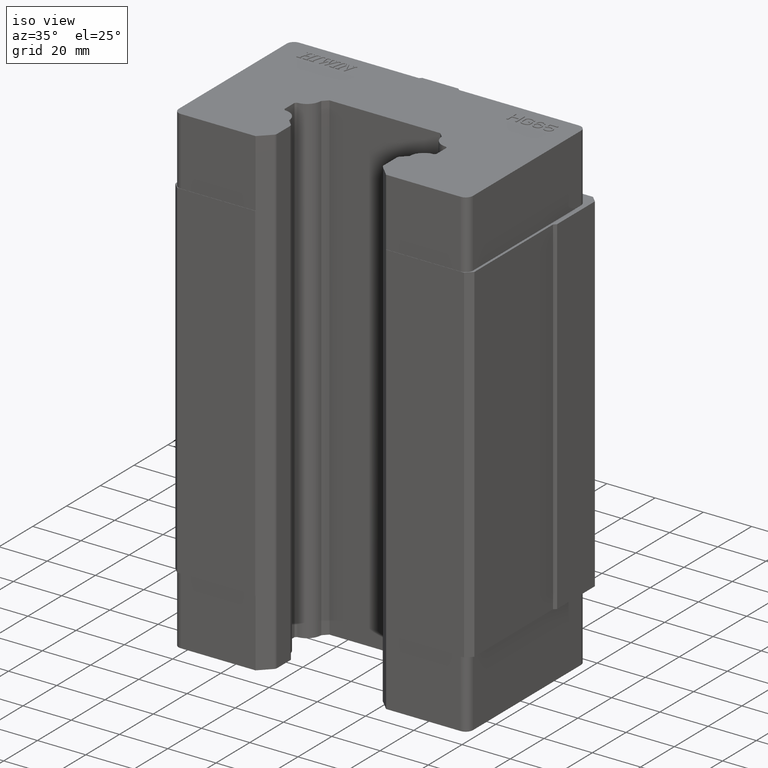
[diagram: clean part render]
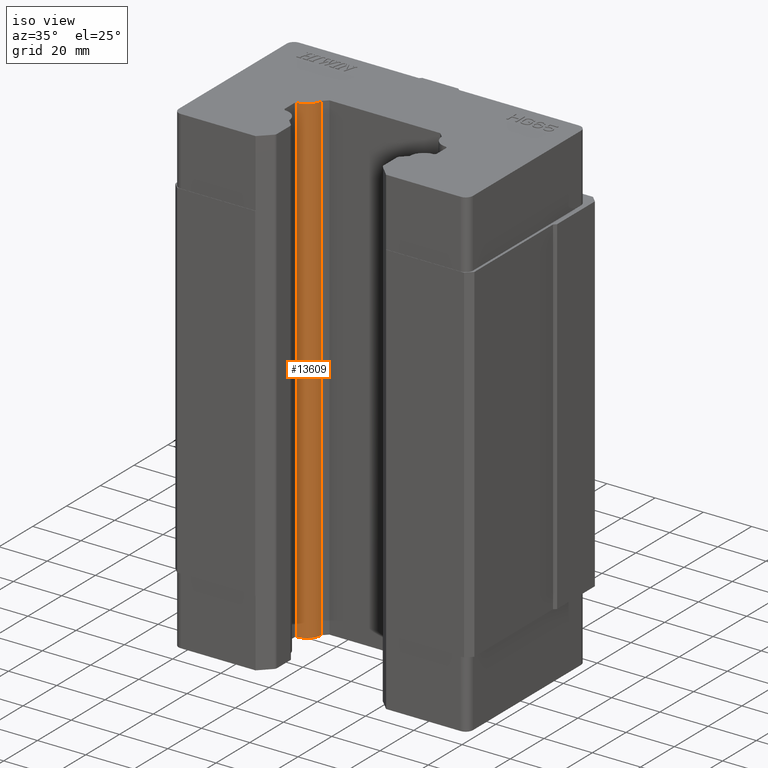
[diagram: same view with one face highlighted and labeled with its STEP entity id]
A machine part, iso view. The second image highlights one B-rep face of the part: STEP entity #13609.
In plain terms, the highlighted cylindrical surface (edge-blend (fillet) strip) has radius 6 mm, axis along (0, 0, 1).
Its self-contained STEP definition (entity closure, byte-faithful):
#1 = ORIENTED_EDGE ( 'NONE', *, *, #602, .T. ) ;
#3 = ORIENTED_EDGE ( 'NONE', *, *, #4, .F. ) ;
#4 = EDGE_CURVE ( 'NONE', #998, #51, #3870, .T. ) ;
#51 = VERTEX_POINT ( 'NONE', #3928 ) ;
#56 = ORIENTED_EDGE ( 'NONE', *, *, #57, .F. ) ;
#57 = EDGE_CURVE ( 'NONE', #51, #58, #3927, .T. ) ;
#58 = VERTEX_POINT ( 'NONE', #3923 ) ;
#108 = EDGE_CURVE ( 'NONE', #1001, #58, #4050, .T. ) ;
#109 = EDGE_LOOP ( 'NONE', ( #112, #56, #3, #1 ) ) ;
#112 = ORIENTED_EDGE ( 'NONE', *, *, #108, .T. ) ;
#602 = EDGE_CURVE ( 'NONE', #998, #1001, #4910, .T. ) ;
#998 = VERTEX_POINT ( 'NONE', #5530 ) ;
#1001 = VERTEX_POINT ( 'NONE', #5528 ) ;
#3866 = DIRECTION ( 'NONE',  ( 1.000000000000000000, 0.0000000000000000000, 0.0000000000000000000 ) ) ;
#3867 = DIRECTION ( 'NONE',  ( 0.0000000000000000000, 0.0000000000000000000, 1.000000000000000000 ) ) ;
#3868 = CARTESIAN_POINT ( 'NONE',  ( -30.99002214876000500, -1.875990851243000100, 100.0999999999999900 ) ) ;
#3869 = AXIS2_PLACEMENT_3D ( 'NONE', #3868, #3867, #3866 ) ;
#3870 = CIRCLE ( 'NONE', #3869, 5.999999999999998200 ) ;
#3923 = CARTESIAN_POINT ( 'NONE',  ( -24.99112634544163600, -1.991095764033635100, -100.0999999999999900 ) ) ;
#3924 = DIRECTION ( 'NONE',  ( 0.0000000000000000000, 0.0000000000000000000, -1.000000000000000000 ) ) ;
#3925 = VECTOR ( 'NONE', #3924, 1000.000000000000000 ) ;
#3926 = CARTESIAN_POINT ( 'NONE',  ( -24.99112634544000100, -1.991095764031999900, -72.09999999999999400 ) ) ;
#3927 = LINE ( 'NONE', #3926, #3925 ) ;
#3928 = CARTESIAN_POINT ( 'NONE',  ( -24.99112634544163600, -1.991095764033635800, 100.0999999999999900 ) ) ;
#4046 = DIRECTION ( 'NONE',  ( 1.000000000000000000, 0.0000000000000000000, 0.0000000000000000000 ) ) ;
#4047 = DIRECTION ( 'NONE',  ( 0.0000000000000000000, 0.0000000000000000000, 1.000000000000000000 ) ) ;
#4048 = CARTESIAN_POINT ( 'NONE',  ( -30.99002214876000500, -1.875990851243000100, -100.0999999999999900 ) ) ;
#4049 = AXIS2_PLACEMENT_3D ( 'NONE', #4048, #4047, #4046 ) ;
#4050 = CIRCLE ( 'NONE', #4049, 5.999999999999998200 ) ;
#4907 = DIRECTION ( 'NONE',  ( 0.0000000000000000000, 0.0000000000000000000, -1.000000000000000000 ) ) ;
#4908 = VECTOR ( 'NONE', #4907, 1000.000000000000000 ) ;
#4909 = CARTESIAN_POINT ( 'NONE',  ( -30.87491723597000300, -7.874886654559775300, -72.09999999999999400 ) ) ;
#4910 = LINE ( 'NONE', #4909, #4908 ) ;
#5528 = CARTESIAN_POINT ( 'NONE',  ( -30.87491723596975000, -7.874886654559770000, -100.0999999999999900 ) ) ;
#5530 = CARTESIAN_POINT ( 'NONE',  ( -30.87491723596975000, -7.874886654559770000, 100.0999999999999900 ) ) ;
#13276 = DIRECTION ( 'NONE',  ( 1.000000000000000000, 0.0000000000000000000, 0.0000000000000000000 ) ) ;
#13277 = DIRECTION ( 'NONE',  ( 0.0000000000000000000, 0.0000000000000000000, 1.000000000000000000 ) ) ;
#13278 = CARTESIAN_POINT ( 'NONE',  ( -30.99002214876000500, -1.875990851243000100, -72.09999999999999400 ) ) ;
#13279 = AXIS2_PLACEMENT_3D ( 'NONE', #13278, #13277, #13276 ) ;
#13281 = CYLINDRICAL_SURFACE ( 'NONE', #13279, 5.999999999999998200 ) ;
#13282 = FACE_OUTER_BOUND ( 'NONE', #109, .T. ) ;
#13609 = ADVANCED_FACE ( 'NONE', ( #13282 ), #13281, .T. ) ;